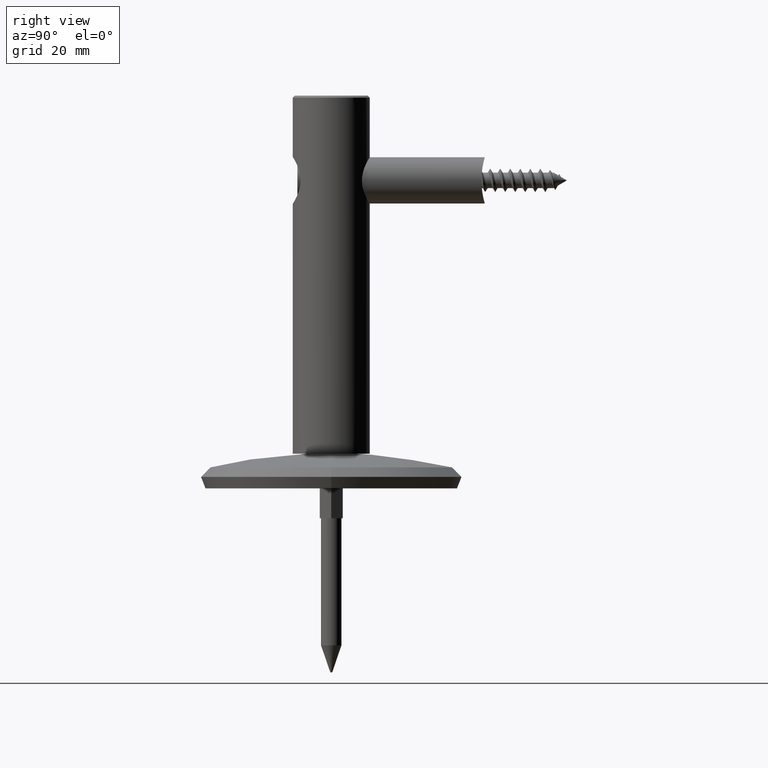
[diagram: clean part render]
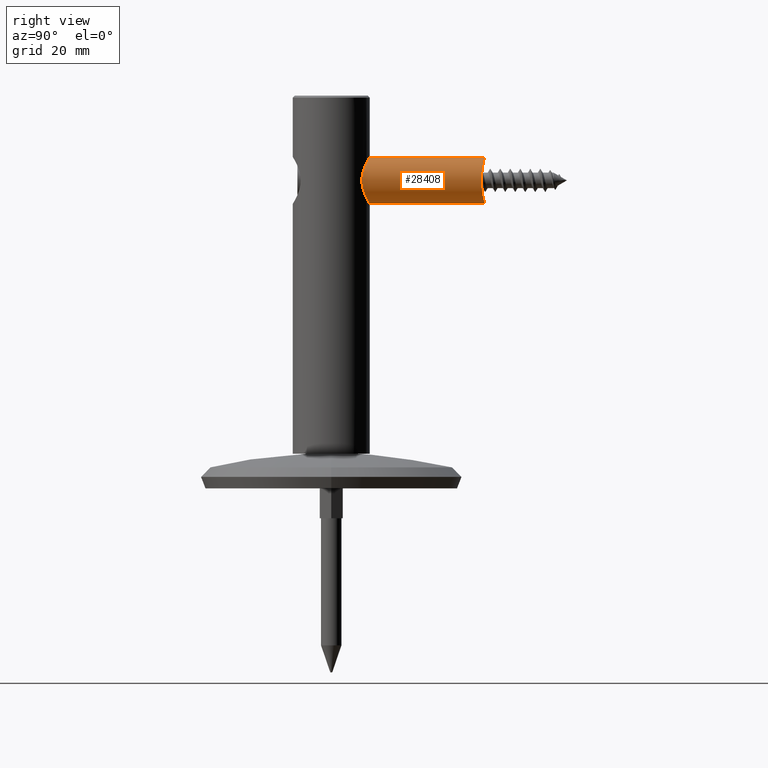
[diagram: same view with one face highlighted and labeled with its STEP entity id]
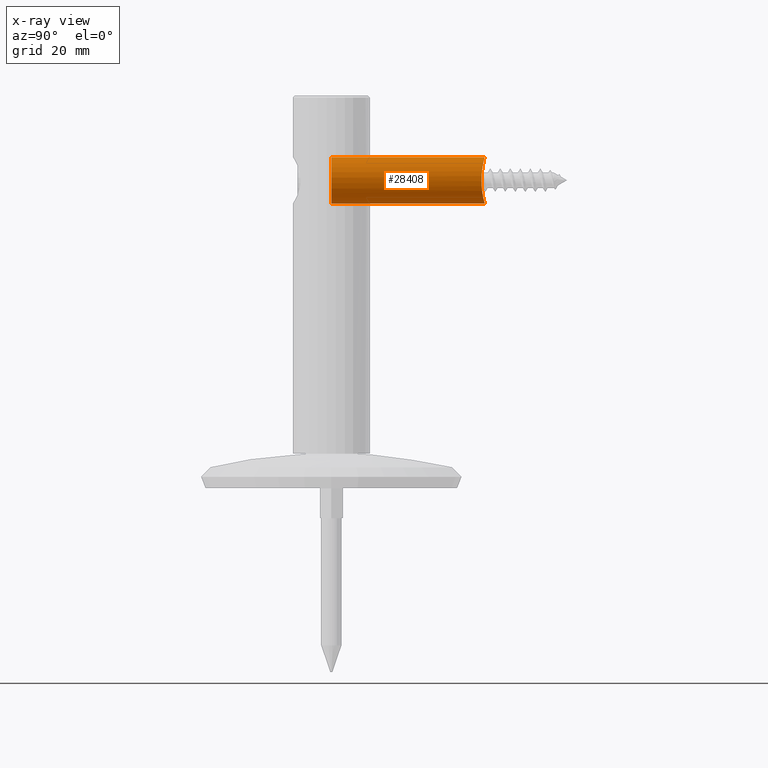
[diagram: x-ray of the same camera — body ghosted, the highlighted face saturated]
A machine part, right view. The second image highlights one B-rep face of the part: STEP entity #28408.
The next image is the same camera in x-ray: the body ghosted, the highlighted face saturated — about 0% of this face is hidden behind the body in this view.
In plain terms, the highlighted cylindrical surface (edge-blend (fillet) strip) has radius 6 mm, axis along (-0, -1, -0).
Its self-contained STEP definition (entity closure, byte-faithful):
#496 = VERTEX_POINT ( 'NONE', #12868 ) ;
#948 = CARTESIAN_POINT ( 'NONE',  ( 5.961297493609233555, 39.01105155484808762, -0.7869635519110287358 ) ) ;
#1093 = CARTESIAN_POINT ( 'NONE',  ( 5.615128942437364934, 39.10581978553012306, -2.123315778258202613 ) ) ;
#1227 = CARTESIAN_POINT ( 'NONE',  ( 5.960613112667822122, 39.01124308048382971, 0.7910465665722062889 ) ) ;
#1369 = CARTESIAN_POINT ( 'NONE',  ( 5.194587013998670066, 39.21391679072306147, 3.009103626833435019 ) ) ;
#2159 = B_SPLINE_CURVE_WITH_KNOTS ( 'NONE', 3,
 ( #7876, #10912, #34231, #7596, #27408, #23934, #13945, #20884, #27826, #17832, #4276, #24211, #37576, #24499, #27680, #31026, #24363, #1093, #11187, #7738, #4140, #948, #21171, #30614, #1227, #33945, #17274, #10763, #20750, #1369, #21026, #40513, #37143, #4411, #4695, #10620, #30739, #4560, #30464, #27262, #20599, #27546, #37292, #34090, #14216, #17699 ),
 .UNSPECIFIED., .F., .F.,
 ( 4, 2, 2, 2, 2, 2, 2, 2, 2, 2, 2, 2, 2, 2, 2, 2, 2, 2, 2, 2, 2, 2, 4 ),
 ( 9.507050222896972145E-20, 0.001178456623054600352, 0.001767684934581899986, 0.002356913246109199837, 0.003535369869163801273, 0.004124598180691100256, 0.004713826492218398806, 0.005892283115272996773, 0.007070739738327594739, 0.007659968049854894157, 0.008249196361382193574, 0.009427652984436792408, 0.01060610960749139124, 0.01178456623054598834, 0.01237379454207328602, 0.01296302285360058371, 0.01355225116512788312, 0.01414147947665517734, 0.01531993609970977270, 0.01649839272276436633, 0.01767684934581895823, 0.01826607765734625244, 0.01885530596887355012 ),
 .UNSPECIFIED. ) ;
#3193 = LINE ( 'NONE', #13174, #23353 ) ;
#4140 = CARTESIAN_POINT ( 'NONE',  ( 5.845158435371324401, 39.04333451992988557, -1.368655444311873914 ) ) ;
#4276 = CARTESIAN_POINT ( 'NONE',  ( 3.658200598528897451, 39.54085634009852157, -4.759842216851366103 ) ) ;
#4411 = CARTESIAN_POINT ( 'NONE',  ( 4.512424573225694679, 39.37243865601760717, 3.959333315974061129 ) ) ;
#4560 = CARTESIAN_POINT ( 'NONE',  ( 3.014240894309293317, 39.64706072130906023, 5.202554198958896592 ) ) ;
#4695 = CARTESIAN_POINT ( 'NONE',  ( 4.379508260688936616, 39.40092173536680775, 4.105892105879326515 ) ) ;
#5435 = DIRECTION ( 'NONE',  ( 0.000000000000000000, 0.000000000000000000, 1.000000000000000000 ) ) ;
#6365 = EDGE_CURVE ( 'NONE', #496, #28369, #2159, .T. ) ;
#7319 = ORIENTED_EDGE ( 'NONE', *, *, #27334, .T. ) ;
#7596 = CARTESIAN_POINT ( 'NONE',  ( 1.367420687936565127, 39.82175322882707036, -5.845396324295041524 ) ) ;
#7738 = CARTESIAN_POINT ( 'NONE',  ( 5.796392049122866652, 39.05679536738986712, -1.562251580214493840 ) ) ;
#7876 = CARTESIAN_POINT ( 'NONE',  ( 4.282583449921128537E-16, 39.86677595657787521, -6.000000000000000888 ) ) ;
#8773 = AXIS2_PLACEMENT_3D ( 'NONE', #29944, #36770, #9978 ) ;
#9032 = ORIENTED_EDGE ( 'NONE', *, *, #6365, .T. ) ;
#9978 = DIRECTION ( 'NONE',  ( 0.000000000000000000, 0.000000000000000000, -1.000000000000000000 ) ) ;
#10007 = DIRECTION ( 'NONE',  ( -0.000000000000000000, -1.000000000000000000, -0.000000000000000000 ) ) ;
#10620 = CARTESIAN_POINT ( 'NONE',  ( 3.963405965243635531, 39.48587817316635551, 4.521635049064708589 ) ) ;
#10763 = CARTESIAN_POINT ( 'NONE',  ( 5.465085613553590349, 39.14526606019861532, 2.484311939383096135 ) ) ;
#10912 = CARTESIAN_POINT ( 'NONE',  ( 0.3986441369163956638, 39.86677595657787521, -6.000000000000001776 ) ) ;
#11187 = CARTESIAN_POINT ( 'NONE',  ( 5.681460633123717407, 39.08801439288511403, -1.939019303999552024 ) ) ;
#12868 = CARTESIAN_POINT ( 'NONE',  ( 4.282583449921128537E-16, 39.86677595657787521, -6.000000000000000888 ) ) ;
#13174 = CARTESIAN_POINT ( 'NONE',  ( 7.347880794884120722E-16, 40.00000000000000000, 6.000000000000000888 ) ) ;
#13623 = CARTESIAN_POINT ( 'NONE',  ( 7.347880794884120722E-16, 0.000000000000000000, 6.000000000000000888 ) ) ;
#13945 = CARTESIAN_POINT ( 'NONE',  ( 2.123396921074096166, 39.75699807366084571, -5.615138941427184172 ) ) ;
#14216 = CARTESIAN_POINT ( 'NONE',  ( 0.1964225233801957793, 39.86677595657789652, 6.000000000000002665 ) ) ;
#14438 = CARTESIAN_POINT ( 'NONE',  ( 0.000000000000000000, 0.000000000000000000, -6.000000000000000888 ) ) ;
#16285 = VECTOR ( 'NONE', #32557, 1000.000000000000000 ) ;
#17274 = CARTESIAN_POINT ( 'NONE',  ( 5.692294384021056253, 39.08552966793217820, 1.937434114536444651 ) ) ;
#17699 = CARTESIAN_POINT ( 'NONE',  ( 7.348785364234270165E-16, 39.86677595657787521, 6.000000000000000888 ) ) ;
#17832 = CARTESIAN_POINT ( 'NONE',  ( 3.499383759741117927, 39.56847265808700342, -4.877768004477588626 ) ) ;
#18436 = CARTESIAN_POINT ( 'NONE',  ( 0.000000000000000000, 0.000000000000000000, 0.000000000000000000 ) ) ;
#20599 = CARTESIAN_POINT ( 'NONE',  ( 1.565212328493490457, 39.81028204674844062, 5.805679156978517774 ) ) ;
#20750 = CARTESIAN_POINT ( 'NONE',  ( 5.379949400878317078, 39.16726813329512424, 2.663565904387352301 ) ) ;
#20884 = CARTESIAN_POINT ( 'NONE',  ( 2.667581774998892374, 39.69570665373164786, -5.388729603304426519 ) ) ;
#21026 = CARTESIAN_POINT ( 'NONE',  ( 5.093967981986091687, 39.23866851421300339, 3.176393424013925326 ) ) ;
#21171 = CARTESIAN_POINT ( 'NONE',  ( 5.999831858749080205, 39.00004758714254649, -0.3962195096139738970 ) ) ;
#21661 = EDGE_CURVE ( 'NONE', #28369, #33474, #3193, .T. ) ;
#22528 = ORIENTED_EDGE ( 'NONE', *, *, #31509, .F. ) ;
#23353 = VECTOR ( 'NONE', #10007, 1000.000000000000000 ) ;
#23934 = CARTESIAN_POINT ( 'NONE',  ( 1.936119854821716002, 39.77567373052905708, -5.682470181884870186 ) ) ;
#24211 = CARTESIAN_POINT ( 'NONE',  ( 3.961481122579620262, 39.48500258687140274, -4.510565027116117065 ) ) ;
#24363 = CARTESIAN_POINT ( 'NONE',  ( 5.390175081494603226, 39.16495659784590799, -2.664316859614594968 ) ) ;
#24499 = CARTESIAN_POINT ( 'NONE',  ( 4.518702584331511396, 39.37246713694097622, -3.966460334515700570 ) ) ;
#25232 = DIRECTION ( 'NONE',  ( 0.000000000000000000, 1.000000000000000000, 0.000000000000000000 ) ) ;
#26764 = VERTEX_POINT ( 'NONE', #14438 ) ;
#27262 = CARTESIAN_POINT ( 'NONE',  ( 1.939369527189091391, 39.77766037300671798, 5.691420258770846452 ) ) ;
#27334 = EDGE_CURVE ( 'NONE', #33474, #26764, #28882, .T. ) ;
#27408 = CARTESIAN_POINT ( 'NONE',  ( 1.558134097658253392, 39.80803282329407011, -5.797520641960685062 ) ) ;
#27546 = CARTESIAN_POINT ( 'NONE',  ( 0.9846664746205322505, 39.84386467889319761, 5.921940725853231058 ) ) ;
#27560 = AXIS2_PLACEMENT_3D ( 'NONE', #18436, #25232, #5435 ) ;
#27680 = CARTESIAN_POINT ( 'NONE',  ( 4.766385858314774460, 39.31668053659756623, -3.665662445873909991 ) ) ;
#27826 = CARTESIAN_POINT ( 'NONE',  ( 3.011386871815903810, 39.64749684489986237, -5.204303865267229767 ) ) ;
#28369 = VERTEX_POINT ( 'NONE', #29649 ) ;
#28408 = ADVANCED_FACE ( 'NONE', ( #36644 ), #33501, .T. ) ;
#28882 = CIRCLE ( 'NONE', #27560, 6.000000000000000888 ) ;
#29277 = ORIENTED_EDGE ( 'NONE', *, *, #21661, .T. ) ;
#29647 = CARTESIAN_POINT ( 'NONE',  ( 0.000000000000000000, 40.00000000000000000, -6.000000000000000888 ) ) ;
#29649 = CARTESIAN_POINT ( 'NONE',  ( 7.348785364234270165E-16, 39.86677595657787521, 6.000000000000000888 ) ) ;
#29944 = CARTESIAN_POINT ( 'NONE',  ( 0.000000000000000000, 40.00000000000000000, 0.000000000000000000 ) ) ;
#30464 = CARTESIAN_POINT ( 'NONE',  ( 2.662841754680447703, 39.69630453094513456, 5.390982518471676421 ) ) ;
#30614 = CARTESIAN_POINT ( 'NONE',  ( 6.000167053742990753, 38.99995272064272456, 0.3911106751756411315 ) ) ;
#30739 = CARTESIAN_POINT ( 'NONE',  ( 3.662604421112712227, 39.54201520064977871, 4.768390421984859628 ) ) ;
#31026 = CARTESIAN_POINT ( 'NONE',  ( 5.205166636605547126, 39.21218550265388814, -3.010275004480794880 ) ) ;
#31509 = EDGE_CURVE ( 'NONE', #496, #26764, #35504, .T. ) ;
#32557 = DIRECTION ( 'NONE',  ( -0.000000000000000000, -1.000000000000000000, -0.000000000000000000 ) ) ;
#33474 = VERTEX_POINT ( 'NONE', #13623 ) ;
#33501 = CYLINDRICAL_SURFACE ( 'NONE', #8773, 6.000000000000000888 ) ;
#33945 = CARTESIAN_POINT ( 'NONE',  ( 5.806360806649871087, 39.05411773104661677, 1.562317999766220655 ) ) ;
#34090 = CARTESIAN_POINT ( 'NONE',  ( 0.3930754559643395707, 39.86392918978506827, 5.990378540363817450 ) ) ;
#34231 = CARTESIAN_POINT ( 'NONE',  ( 0.7901947365215972185, 39.85505428275322970, -5.960669625292871920 ) ) ;
#34535 = EDGE_LOOP ( 'NONE', ( #9032, #29277, #7319, #22528 ) ) ;
#35504 = LINE ( 'NONE', #29647, #16285 ) ;
#36644 = FACE_OUTER_BOUND ( 'NONE', #34535, .T. ) ;
#36770 = DIRECTION ( 'NONE',  ( -0.000000000000000000, -1.000000000000000000, -0.000000000000000000 ) ) ;
#37143 = CARTESIAN_POINT ( 'NONE',  ( 4.760831492535498199, 39.31721157247872611, 3.656881094008317845 ) ) ;
#37292 = CARTESIAN_POINT ( 'NONE',  ( 0.7868516514997578870, 39.85250867538059083, 5.951471066002508081 ) ) ;
#37576 = CARTESIAN_POINT ( 'NONE',  ( 4.105976911590152767, 39.45678642477133025, -4.379363396570472133 ) ) ;
#40513 = CARTESIAN_POINT ( 'NONE',  ( 4.877090224417094610, 39.29031523641135237, 3.500282264120078146 ) ) ;